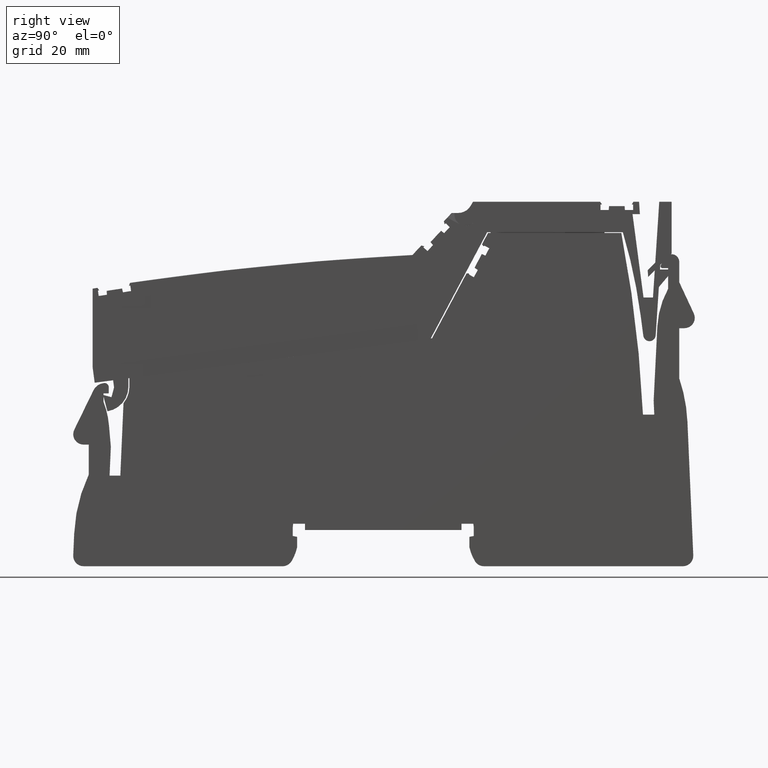
[diagram: clean part render]
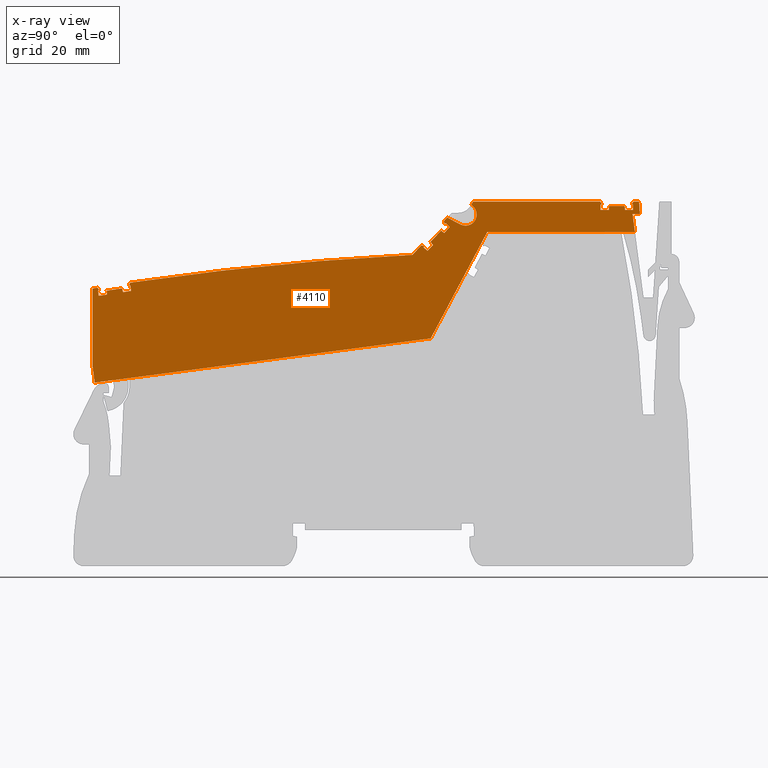
[diagram: x-ray — body ghosted, one internal face saturated and labeled with its STEP entity id]
A machine part, right view, then the same camera in x-ray: the body is ghosted and one INTERNAL B-rep face — a face not visible from any outside direction — is saturated and labeled: STEP entity #4110.
In plain terms, the highlighted planar face has unit normal (1, 0, 0).
Its self-contained STEP definition (entity closure, byte-faithful):
#10=CARTESIAN_POINT('',(82.6815349965882,79.1094320933787,-35.425));
#20=DIRECTION('',(0.,-0.,1.));
#30=DIRECTION('',(0.99144486137381,0.130526192220052,0.));
#40=AXIS2_PLACEMENT_3D('',#10,#20,#30);
#50=PLANE('',#40);
#60=CARTESIAN_POINT('',(7.105427357601E-15,123.952271663143,-35.425));
#70=DIRECTION('',(0.887010833178214,-0.461748613235049,0.));
#80=VECTOR('',#70,1.);
#90=LINE('',#60,#80);
#100=CARTESIAN_POINT('',(81.7124060542132,81.4154854500132,-35.425));
#110=VERTEX_POINT('',#100);
#120=CARTESIAN_POINT('',(84.2556033003072,80.0915807606426,-35.425));
#130=VERTEX_POINT('',#120);
#140=EDGE_CURVE('',#110,#130,#90,.T.);
#150=ORIENTED_EDGE('',*,*,#140,.F.);
#160=CARTESIAN_POINT('',(85.2483628187626,81.9986540519759,-35.425));
#170=DIRECTION('',(-8.85927774418128E-33,0.,1.));
#180=DIRECTION('',(0.99144486137381,0.130526192220052,
8.7834853949519E-33));
#190=AXIS2_PLACEMENT_3D('',#160,#170,#180);
#200=CIRCLE('',#190,2.15000000000011);
#210=CARTESIAN_POINT('',(86.323362818763,83.8606086701124,-35.425));
#220=VERTEX_POINT('',#210);
#230=EDGE_CURVE('',#130,#220,#200,.T.);
#240=ORIENTED_EDGE('',*,*,#230,.F.);
#250=CARTESIAN_POINT('',(37.9064178286642,-2.8421709430404E-14,-35.425))
;
#260=DIRECTION('',(-0.500000000000028,-0.866025403784423,0.));
#270=VECTOR('',#260,1.);
#280=LINE('',#250,#270);
#290=CARTESIAN_POINT('',(86.6847904689085,84.4866197234245,-35.425));
#300=VERTEX_POINT('',#290);
#310=EDGE_CURVE('',#300,#220,#280,.T.);
#320=ORIENTED_EDGE('',*,*,#310,.T.);
#330=CARTESIAN_POINT('',(7.105427357601E-15,84.4866197234245,-35.425));
#340=DIRECTION('',(-1.,0.,0.));
#350=VECTOR('',#340,1.);
#360=LINE('',#330,#350);
#370=CARTESIAN_POINT('',(111.280097074187,84.4866197234245,-35.425));
#380=VERTEX_POINT('',#370);
#390=EDGE_CURVE('',#380,#300,#360,.T.);
#400=ORIENTED_EDGE('',*,*,#390,.T.);
#410=CARTESIAN_POINT('',(117.476804588516,73.7536074689866,-35.425));
#420=DIRECTION('',(0.500000000000819,-0.866025403783966,
3.34767537788399E-17));
#430=VECTOR('',#420,1.);
#440=LINE('',#410,#430);
#450=CARTESIAN_POINT('',(111.586092716858,83.9566197234263,-35.425));
#460=VERTEX_POINT('',#450);
#470=EDGE_CURVE('',#380,#460,#440,.T.);
#480=ORIENTED_EDGE('',*,*,#470,.F.);
#490=CARTESIAN_POINT('',(70.5167661636283,83.9566197232153,-35.425));
#500=DIRECTION('',(-1.,-5.1373627574236E-12,-1.14423563262215E-17));
#510=VECTOR('',#500,1.);
#520=LINE('',#490,#510);
#530=CARTESIAN_POINT('',(111.313785095723,83.9566197234249,-35.425));
#540=VERTEX_POINT('',#530);
#550=EDGE_CURVE('',#460,#540,#520,.T.);
#560=ORIENTED_EDGE('',*,*,#550,.F.);
#570=CARTESIAN_POINT('',(111.313785095715,-2.8421709430404E-14,-35.425))
;
#580=DIRECTION('',(-9.34252675222069E-14,-1.,0.));
#590=VECTOR('',#580,1.);
#600=LINE('',#570,#590);
#610=CARTESIAN_POINT('',(111.313785095723,82.8866197234248,-35.425));
#620=VERTEX_POINT('',#610);
#630=EDGE_CURVE('',#540,#620,#600,.T.);
#640=ORIENTED_EDGE('',*,*,#630,.F.);
#650=CARTESIAN_POINT('',(7.105427357601E-15,82.8866197234115,-35.425));
#660=DIRECTION('',(1.,1.19154686117895E-13,0.));
#670=VECTOR('',#660,1.);
#680=LINE('',#650,#670);
#690=CARTESIAN_POINT('',(112.910668598078,82.886619723425,-35.425));
#700=VERTEX_POINT('',#690);
#710=EDGE_CURVE('',#620,#700,#680,.T.);
#720=ORIENTED_EDGE('',*,*,#710,.F.);
#730=CARTESIAN_POINT('',(105.659029014286,-2.8421709430404E-14,-35.425))
;
#740=DIRECTION('',(0.087155742747754,0.996194698091737,0.));
#750=VECTOR('',#740,1.);
#760=LINE('',#730,#750);
#770=CARTESIAN_POINT('',(112.976285095723,83.6366197234249,-35.425));
#780=VERTEX_POINT('',#770);
#790=EDGE_CURVE('',#700,#780,#760,.T.);
#800=ORIENTED_EDGE('',*,*,#790,.F.);
#810=CARTESIAN_POINT('',(70.5588949628286,83.6366197234257,-35.425));
#820=DIRECTION('',(1.,-1.86795023893183E-14,1.14423563262215E-17));
#830=VECTOR('',#820,1.);
#840=LINE('',#810,#830);
#850=CARTESIAN_POINT('',(115.976285095723,83.6366197234249,-35.425));
#860=VERTEX_POINT('',#850);
#870=EDGE_CURVE('',#780,#860,#840,.T.);
#880=ORIENTED_EDGE('',*,*,#870,.F.);
#890=CARTESIAN_POINT('',(123.293541177125,-2.8421709430404E-14,-35.425))
;
#900=DIRECTION('',(0.0871557427473462,-0.996194698091773,0.));
#910=VECTOR('',#900,1.);
#920=LINE('',#890,#910);
#930=CARTESIAN_POINT('',(116.041901593367,82.8866197234247,-35.425));
#940=VERTEX_POINT('',#930);
#950=EDGE_CURVE('',#860,#940,#920,.T.);
#960=ORIENTED_EDGE('',*,*,#950,.F.);
#970=CARTESIAN_POINT('',(7.105427357601E-15,82.8866197234154,-35.425));
#980=DIRECTION('',(1.,8.06021915877864E-14,0.));
#990=VECTOR('',#980,1.);
#1000=LINE('',#970,#990);
#1010=CARTESIAN_POINT('',(117.638785095723,82.8866197234249,-35.425));
#1020=VERTEX_POINT('',#1010);
#1030=EDGE_CURVE('',#940,#1020,#1000,.T.);
#1040=ORIENTED_EDGE('',*,*,#1030,.F.);
#1050=CARTESIAN_POINT('',(117.638785095727,-2.8421709430404E-14,-35.425)
);
#1060=DIRECTION('',(-5.49282841433296E-14,1.,0.));
#1070=VECTOR('',#1060,1.);
#1080=LINE('',#1050,#1070);
#1090=CARTESIAN_POINT('',(117.638785095723,83.9566197234248,-35.425));
#1100=VERTEX_POINT('',#1090);
#1110=EDGE_CURVE('',#1020,#1100,#1080,.T.);
#1120=ORIENTED_EDGE('',*,*,#1110,.F.);
#1130=CARTESIAN_POINT('',(70.5167661635693,83.9566197236635,-35.425));
#1140=DIRECTION('',(-1.,5.06689135093552E-12,-1.14423563262215E-17));
#1150=VECTOR('',#1140,1.);
#1160=LINE('',#1130,#1150);
#1170=CARTESIAN_POINT('',(117.366477474588,83.9566197234262,-35.425));
#1180=VERTEX_POINT('',#1170);
#1190=EDGE_CURVE('',#1100,#1180,#1160,.T.);
#1200=ORIENTED_EDGE('',*,*,#1190,.F.);
#1210=CARTESIAN_POINT('',(110.982106139763,72.8985641971313,-35.425));
#1220=DIRECTION('',(0.500000000000253,0.866025403784292,
-2.20343974524871E-17));
#1230=VECTOR('',#1220,1.);
#1240=LINE('',#1210,#1230);
#1250=CARTESIAN_POINT('',(117.672473117258,84.4866197234246,-35.425));
#1260=VERTEX_POINT('',#1250);
#1270=EDGE_CURVE('',#1180,#1260,#1240,.T.);
#1280=ORIENTED_EDGE('',*,*,#1270,.F.);
#1290=CARTESIAN_POINT('',(70.4469903398795,84.4866197234245,-35.425));
#1300=DIRECTION('',(-1.,-3.33066907387547E-15,-1.14423563262215E-17));
#1310=VECTOR('',#1300,1.);
#1320=LINE('',#1290,#1310);
#1330=CARTESIAN_POINT('',(118.776285095723,84.4866197234246,-35.425));
#1340=VERTEX_POINT('',#1330);
#1350=EDGE_CURVE('',#1340,#1260,#1320,.T.);
#1360=ORIENTED_EDGE('',*,*,#1350,.T.);
#1370=CARTESIAN_POINT('',(119.46262829087,74.0150461191697,-35.425));
#1380=DIRECTION('',(-0.0654031292301207,0.997858923238605,
-1.07067800097519E-18));
#1390=VECTOR('',#1380,1.);
#1400=LINE('',#1370,#1390);
#1410=CARTESIAN_POINT('',(118.933589406479,82.0866197234257,-35.425));
#1420=VERTEX_POINT('',#1410);
#1430=EDGE_CURVE('',#1420,#1340,#1400,.T.);
#1440=ORIENTED_EDGE('',*,*,#1430,.T.);
#1450=CARTESIAN_POINT('',(70.7629563340898,82.0866197234204,-35.425));
#1460=DIRECTION('',(-1.,-1.11688436277291E-13,-1.14423563262215E-17));
#1470=VECTOR('',#1460,1.);
#1480=LINE('',#1450,#1470);
#1490=CARTESIAN_POINT('',(117.512908656979,82.0866197234256,-35.425));
#1500=VERTEX_POINT('',#1490);
#1510=EDGE_CURVE('',#1420,#1500,#1480,.T.);
#1520=ORIENTED_EDGE('',*,*,#1510,.F.);
#1530=CARTESIAN_POINT('',(128.319817162075,-2.8421709430404E-14,-35.425)
);
#1540=DIRECTION('',(0.130526192220052,-0.99144486137381,0.));
#1550=VECTOR('',#1540,1.);
#1560=LINE('',#1530,#1550);
#1570=CARTESIAN_POINT('',(117.973692398535,78.5866197234246,-35.425));
#1580=VERTEX_POINT('',#1570);
#1590=EDGE_CURVE('',#1500,#1580,#1560,.T.);
#1600=ORIENTED_EDGE('',*,*,#1590,.F.);
#1610=CARTESIAN_POINT('',(71.2237400756451,78.5866197234246,-35.425));
#1620=DIRECTION('',(1.,0.,1.14423563262215E-17));
#1630=VECTOR('',#1620,1.);
#1640=LINE('',#1610,#1630);
#1650=CARTESIAN_POINT('',(89.4233780495347,78.5866197234246,-35.425));
#1660=VERTEX_POINT('',#1650);
#1670=EDGE_CURVE('',#1660,#1580,#1640,.T.);
#1680=ORIENTED_EDGE('',*,*,#1670,.T.);
#1690=CARTESIAN_POINT('',(84.5486179871549,69.4185294618935,-35.425));
#1700=DIRECTION('',(0.469471562785891,0.882947592858927,
1.98252351633153E-18));
#1710=VECTOR('',#1700,1.);
#1720=LINE('',#1690,#1710);
#1730=CARTESIAN_POINT('',(78.5141517634814,58.0693491307922,-35.425));
#1740=VERTEX_POINT('',#1730);
#1750=EDGE_CURVE('',#1740,#1660,#1720,.T.);
#1760=ORIENTED_EDGE('',*,*,#1750,.T.);
#1770=CARTESIAN_POINT('',(74.0030776442306,57.4754549561902,-35.425));
#1780=DIRECTION('',(0.991444861373789,0.130526192220212,
2.03025052721141E-32));
#1790=VECTOR('',#1780,1.);
#1800=LINE('',#1770,#1790);
#1810=CARTESIAN_POINT('',(13.5745133434982,49.5198835403683,-35.425));
#1820=VERTEX_POINT('',#1810);
#1830=EDGE_CURVE('',#1820,#1740,#1800,.T.);
#1840=ORIENTED_EDGE('',*,*,#1830,.T.);
#1850=CARTESIAN_POINT('',(12.2086310606799,59.8947895075835,-35.425));
#1860=DIRECTION('',(0.130526192220052,-0.99144486137381,
-3.08148791101958E-32));
#1870=VECTOR('',#1860,1.);
#1880=LINE('',#1850,#1870);
#1890=CARTESIAN_POINT('',(13.1829347668366,52.4942181245001,-35.425));
#1900=VERTEX_POINT('',#1890);
#1910=EDGE_CURVE('',#1900,#1820,#1880,.T.);
#1920=ORIENTED_EDGE('',*,*,#1910,.T.);
#1930=CARTESIAN_POINT('',(13.1829347668366,60.0230590239077,-35.425));
#1940=DIRECTION('',(8.32667268468867E-17,-1.,-1.38777878078145E-17));
#1950=VECTOR('',#1940,1.);
#1960=LINE('',#1930,#1950);
#1970=CARTESIAN_POINT('',(13.1829347668366,67.701244428714,-35.425));
#1980=VERTEX_POINT('',#1970);
#1990=EDGE_CURVE('',#1980,#1900,#1960,.T.);
#2000=ORIENTED_EDGE('',*,*,#1990,.T.);
#2010=CARTESIAN_POINT('',(104.084452057128,-500.06799932646,-35.425));
#2020=DIRECTION('',(-8.85927774418128E-33,0.,1.));
#2030=DIRECTION('',(0.99144486137381,0.130526192220052,0.));
#2040=AXIS2_PLACEMENT_3D('',#2010,#2020,#2030);
#2050=CIRCLE('',#2040,575.);
#2060=CARTESIAN_POINT('',(14.0966316585303,67.8467761283693,-35.425));
#2070=VERTEX_POINT('',#2060);
#2080=EDGE_CURVE('',#2070,#1980,#2050,.T.);
#2090=ORIENTED_EDGE('',*,*,#2080,.T.);
#2100=CARTESIAN_POINT('',(19.676851164994,60.8779993368489,-35.425));
#2110=DIRECTION('',(0.625050010517978,-0.780584706711242,
2.1035385032723E-17));
#2120=VECTOR('',#2110,1.);
#2130=LINE('',#2100,#2120);
#2140=CARTESIAN_POINT('',(14.472765890979,67.3770463074278,-35.425));
#2150=VERTEX_POINT('',#2140);
#2160=EDGE_CURVE('',#2070,#2150,#2130,.T.);
#2170=ORIENTED_EDGE('',*,*,#2160,.F.);
#2180=CARTESIAN_POINT('',(71.551517232091,76.0969050392932,-35.425));
#2190=DIRECTION('',(-0.988531191076977,-0.151016834385886,
3.70508301110601E-19));
#2200=VECTOR('',#2190,1.);
#2210=LINE('',#2180,#2200);
#2220=CARTESIAN_POINT('',(14.2035813139184,67.3359232725049,-35.425));
#2230=VERTEX_POINT('',#2220);
#2240=EDGE_CURVE('',#2150,#2230,#2210,.T.);
#2250=ORIENTED_EDGE('',*,*,#2240,.F.);
#2260=CARTESIAN_POINT('',(24.4904170405679,-2.8421709430404E-14,-35.425)
);
#2270=DIRECTION('',(0.151016834388983,-0.988531191076503,0.));
#2280=VECTOR('',#2270,1.);
#2290=LINE('',#2260,#2280);
#2300=CARTESIAN_POINT('',(14.3651693267146,66.2781948980529,-35.425));
#2310=VERTEX_POINT('',#2300);
#2320=EDGE_CURVE('',#2230,#2310,#2290,.T.);
#2330=ORIENTED_EDGE('',*,*,#2320,.F.);
#2340=CARTESIAN_POINT('',(7.105427357601E-15,64.0836436114932,-35.425));
#2350=DIRECTION('',(0.988531191076512,0.151016834388925,0.));
#2360=VECTOR('',#2350,1.);
#2370=LINE('',#2340,#2360);
#2380=CARTESIAN_POINT('',(15.9437384773084,66.5193511894665,-35.425));
#2390=VERTEX_POINT('',#2380);
#2400=EDGE_CURVE('',#2310,#2390,#2370,.T.);
#2410=ORIENTED_EDGE('',*,*,#2400,.F.);
#2420=CARTESIAN_POINT('',(20.2288651749482,-2.8421709430404E-14,-35.425)
);
#2430=DIRECTION('',(-0.0642859995531953,0.997931515817316,0.));
#2440=VECTOR('',#2430,1.);
#2450=LINE('',#2420,#2440);
#2460=CARTESIAN_POINT('',(15.8953398060877,67.2706587785318,-35.425));
#2470=VERTEX_POINT('',#2460);
#2480=EDGE_CURVE('',#2390,#2470,#2450,.T.);
#2490=ORIENTED_EDGE('',*,*,#2480,.F.);
#2500=CARTESIAN_POINT('',(71.5932945613604,75.7795747186763,-35.425));
#2510=DIRECTION('',(0.988531191076507,0.151016834388962,
-3.70508301168148E-19));
#2520=VECTOR('',#2510,1.);
#2530=LINE('',#2500,#2520);
#2540=CARTESIAN_POINT('',(18.8609333793172,67.7237092816986,-35.425));
#2550=VERTEX_POINT('',#2540);
#2560=EDGE_CURVE('',#2470,#2550,#2530,.T.);
#2570=ORIENTED_EDGE('',*,*,#2560,.F.);
#2580=CARTESIAN_POINT('',(35.352486206355,-2.8421709430404E-14,-35.425))
;
#2590=DIRECTION('',(0.236598339928087,-0.971607547080236,0.));
#2600=VECTOR('',#2590,1.);
#2610=LINE('',#2580,#2600);
#2620=CARTESIAN_POINT('',(19.0390599596794,66.9922200841493,-35.425));
#2630=VERTEX_POINT('',#2620);
#2640=EDGE_CURVE('',#2550,#2630,#2610,.T.);
#2650=ORIENTED_EDGE('',*,*,#2640,.F.);
#2660=CARTESIAN_POINT('',(7.105427357601E-15,64.0836436114918,-35.425));
#2670=DIRECTION('',(0.9885311910765,0.151016834389004,0.));
#2680=VECTOR('',#2670,1.);
#2690=LINE('',#2660,#2680);
#2700=CARTESIAN_POINT('',(20.6176291102735,67.2333763755631,-35.425));
#2710=VERTEX_POINT('',#2700);
#2720=EDGE_CURVE('',#2630,#2710,#2690,.T.);
#2730=ORIENTED_EDGE('',*,*,#2720,.F.);
#2740=CARTESIAN_POINT('',(30.8887988590628,-2.8421709430404E-14,-35.425)
);
#2750=DIRECTION('',(-0.15101683438897,0.988531191076505,0.));
#2760=VECTOR('',#2750,1.);
#2770=LINE('',#2740,#2760);
#2780=CARTESIAN_POINT('',(20.4560410974773,68.2911047500148,-35.425));
#2790=VERTEX_POINT('',#2780);
#2800=EDGE_CURVE('',#2710,#2790,#2770,.T.);
#2810=ORIENTED_EDGE('',*,*,#2800,.F.);
#2820=CARTESIAN_POINT('',(71.5515172321112,76.0969050391398,-35.425));
#2830=DIRECTION('',(-0.988531191077486,-0.151016834382553,
3.70508301048238E-19));
#2840=VECTOR('',#2830,1.);
#2850=LINE('',#2820,#2840);
#2860=CARTESIAN_POINT('',(20.186856520418,68.2499817150928,-35.425));
#2870=VERTEX_POINT('',#2860);
#2880=EDGE_CURVE('',#2790,#2870,#2850,.T.);
#2890=ORIENTED_EDGE('',*,*,#2880,.F.);
#2900=CARTESIAN_POINT('',(17.182413559422,60.5496003959994,-35.425));
#2910=DIRECTION('',(0.363481180558057,0.931601541100122,
-1.0997552478088E-17));
#2920=VECTOR('',#2910,1.);
#2930=LINE('',#2900,#2920);
#2940=CARTESIAN_POINT('',(20.4055873620426,68.8105884260945,-35.425));
#2950=VERTEX_POINT('',#2940);
#2960=EDGE_CURVE('',#2870,#2950,#2930,.T.);
#2970=ORIENTED_EDGE('',*,*,#2960,.F.);
#2980=CARTESIAN_POINT('',(104.084452057128,-500.06799932646,-35.425));
#2990=DIRECTION('',(-8.85927774418128E-33,0.,1.));
#3000=DIRECTION('',(0.99144486137381,0.130526192220052,0.));
#3010=AXIS2_PLACEMENT_3D('',#2980,#2990,#3000);
#3020=CIRCLE('',#3010,575.);
#3030=CARTESIAN_POINT('',(74.9791020504755,74.1949009213182,-35.425));
#3040=VERTEX_POINT('',#3030);
#3050=EDGE_CURVE('',#3040,#2950,#3020,.T.);
#3060=ORIENTED_EDGE('',*,*,#3050,.T.);
#3070=CARTESIAN_POINT('',(72.1949828292245,71.2092985834693,-35.425));
#3080=DIRECTION('',(-0.681998360062363,-0.731353701619297,
-2.53969612628868E-19));
#3090=VECTOR('',#3080,1.);
#3100=LINE('',#3070,#3090);
#3110=CARTESIAN_POINT('',(76.688235497364,76.0277221510188,-35.425));
#3120=VERTEX_POINT('',#3110);
#3130=EDGE_CURVE('',#3120,#3040,#3100,.T.);
#3140=ORIENTED_EDGE('',*,*,#3130,.T.);
#3150=CARTESIAN_POINT('',(71.3998893619735,77.248633057342,-35.425));
#3160=DIRECTION('',(0.974370064785244,-0.224951054343824,
3.6059170670998E-17));
#3170=VECTOR('',#3160,1.);
#3180=LINE('',#3150,#3170);
#3190=CARTESIAN_POINT('',(77.2845414857078,75.8900540661325,-35.425));
#3200=VERTEX_POINT('',#3190);
#3210=EDGE_CURVE('',#3120,#3200,#3180,.T.);
#3220=ORIENTED_EDGE('',*,*,#3210,.F.);
#3230=CARTESIAN_POINT('',(72.2846363775469,70.5283122750789,-35.425));
#3240=DIRECTION('',(-0.681998360064581,-0.731353701617229,
-2.53969612900505E-19));
#3250=VECTOR('',#3240,1.);
#3260=LINE('',#3230,#3250);
#3270=CARTESIAN_POINT('',(77.0988281346601,75.6909008794362,-35.425));
#3280=VERTEX_POINT('',#3270);
#3290=EDGE_CURVE('',#3200,#3280,#3260,.T.);
#3300=ORIENTED_EDGE('',*,*,#3290,.F.);
#3310=CARTESIAN_POINT('',(7.105427357601E-15,147.586721238526,-35.425));
#3320=DIRECTION('',(0.731353701619242,-0.681998360062422,0.));
#3330=VECTOR('',#3320,1.);
#3340=LINE('',#3310,#3330);
#3350=CARTESIAN_POINT('',(77.8813765953927,74.9611626341694,-35.425));
#3360=VERTEX_POINT('',#3350);
#3370=EDGE_CURVE('',#3280,#3360,#3340,.T.);
#3380=ORIENTED_EDGE('',*,*,#3370,.F.);
#3390=CARTESIAN_POINT('',(7.97896156459621,-2.8421709430404E-14,-35.425)
);
#3400=DIRECTION('',(0.681998360062575,0.731353701619099,0.));
#3410=VECTOR('',#3400,1.);
#3420=LINE('',#3390,#3410);
#3430=CARTESIAN_POINT('',(78.9704485252099,76.1290492946714,-35.425));
#3440=VERTEX_POINT('',#3430);
#3450=EDGE_CURVE('',#3360,#3440,#3420,.T.);
#3460=ORIENTED_EDGE('',*,*,#3450,.F.);
#3470=CARTESIAN_POINT('',(147.517352398626,-2.8421709430404E-14,-35.425)
);
#3480=DIRECTION('',(-0.669130606358558,0.743144825477665,0.));
#3490=VECTOR('',#3480,1.);
#3500=LINE('',#3470,#3490);
#3510=CARTESIAN_POINT('',(78.4666835927825,76.6885369331583,-35.425));
#3520=VERTEX_POINT('',#3510);
#3530=EDGE_CURVE('',#3440,#3520,#3500,.T.);
#3540=ORIENTED_EDGE('',*,*,#3530,.F.);
#3550=CARTESIAN_POINT('',(72.338766821823,70.1171507303451,-35.425));
#3560=DIRECTION('',(0.681998360062455,0.731353701619211,
2.53969612640089E-19));
#3570=VECTOR('',#3560,1.);
#3580=LINE('',#3550,#3570);
#3590=CARTESIAN_POINT('',(80.5126786729696,78.8825980380156,-35.425));
#3600=VERTEX_POINT('',#3590);
#3610=EDGE_CURVE('',#3520,#3600,#3580,.T.);
#3620=ORIENTED_EDGE('',*,*,#3610,.F.);
#3630=CARTESIAN_POINT('',(7.105427357601E-15,141.785996636754,-35.425));
#3640=DIRECTION('',(0.788010753606755,-0.615661475325616,0.));
#3650=VECTOR('',#3640,1.);
#3660=LINE('',#3630,#3650);
#3670=CARTESIAN_POINT('',(81.1059442929708,78.4190881364081,-35.425));
#3680=VERTEX_POINT('',#3670);
#3690=EDGE_CURVE('',#3600,#3680,#3660,.T.);
#3700=ORIENTED_EDGE('',*,*,#3690,.F.);
#3710=CARTESIAN_POINT('',(7.9789615646208,-2.8421709430404E-14,-35.425))
;
#3720=DIRECTION('',(0.681998360062451,0.731353701619215,0.));
#3730=VECTOR('',#3720,1.);
#3740=LINE('',#3710,#3730);
#3750=CARTESIAN_POINT('',(82.195016222788,79.5869747969106,-35.425));
#3760=VERTEX_POINT('',#3750);
#3770=EDGE_CURVE('',#3680,#3760,#3740,.T.);
#3780=ORIENTED_EDGE('',*,*,#3770,.F.);
#3790=CARTESIAN_POINT('',(7.105427357601E-15,156.235067429974,-35.425));
#3800=DIRECTION('',(-0.731353701619242,0.681998360062422,0.));
#3810=VECTOR('',#3800,1.);
#3820=LINE('',#3790,#3810);
#3830=CARTESIAN_POINT('',(81.4124677620555,80.3167130421773,-35.425));
#3840=VERTEX_POINT('',#3830);
#3850=EDGE_CURVE('',#3760,#3840,#3820,.T.);
#3860=ORIENTED_EDGE('',*,*,#3850,.F.);
#3870=CARTESIAN_POINT('',(72.2846363775451,70.5283122750928,-35.425));
#3880=DIRECTION('',(-0.681998360064199,-0.731353701617584,
-2.53969612853764E-19));
#3890=VECTOR('',#3880,1.);
#3900=LINE('',#3870,#3890);
#3910=CARTESIAN_POINT('',(81.2267544110084,80.1175598554815,-35.425));
#3920=VERTEX_POINT('',#3910);
#3930=EDGE_CURVE('',#3840,#3920,#3900,.T.);
#3940=ORIENTED_EDGE('',*,*,#3930,.F.);
#3950=CARTESIAN_POINT('',(84.4997434735127,69.4120950101041,-35.425));
#3960=DIRECTION('',(-0.29237170472236,0.956304755963151,
5.82816236513809E-18));
#3970=VECTOR('',#3960,1.);
#3980=LINE('',#3950,#3970);
#3990=CARTESIAN_POINT('',(81.0478254756385,80.7028100322593,-35.425));
#4000=VERTEX_POINT('',#3990);
#4010=EDGE_CURVE('',#3920,#4000,#3980,.T.);
#4020=ORIENTED_EDGE('',*,*,#4010,.F.);
#4030=CARTESIAN_POINT('',(5.79123762688281,-2.8421709430404E-14,-35.425)
);
#4040=DIRECTION('',(0.681998360062363,0.731353701619297,0.));
#4050=VECTOR('',#4040,1.);
#4060=LINE('',#4030,#4050);
#4070=EDGE_CURVE('',#4000,#110,#4060,.T.);
#4080=ORIENTED_EDGE('',*,*,#4070,.F.);
#4090=EDGE_LOOP('',(#4080,#4020,#3940,#3860,#3780,#3700,#3620,#3540,
#3460,#3380,#3300,#3220,#3140,#3060,#2970,#2890,#2810,#2730,#2650,#2570,
#2490,#2410,#2330,#2250,#2170,#2090,#2000,#1920,#1840,#1760,#1680,#1600,
#1520,#1440,#1360,#1280,#1200,#1120,#1040,#960,#880,#800,#720,#640,#560,
#480,#400,#320,#240,#150));
#4100=FACE_OUTER_BOUND('',#4090,.T.);
#4110=ADVANCED_FACE('',(#4100),#50,.T.);